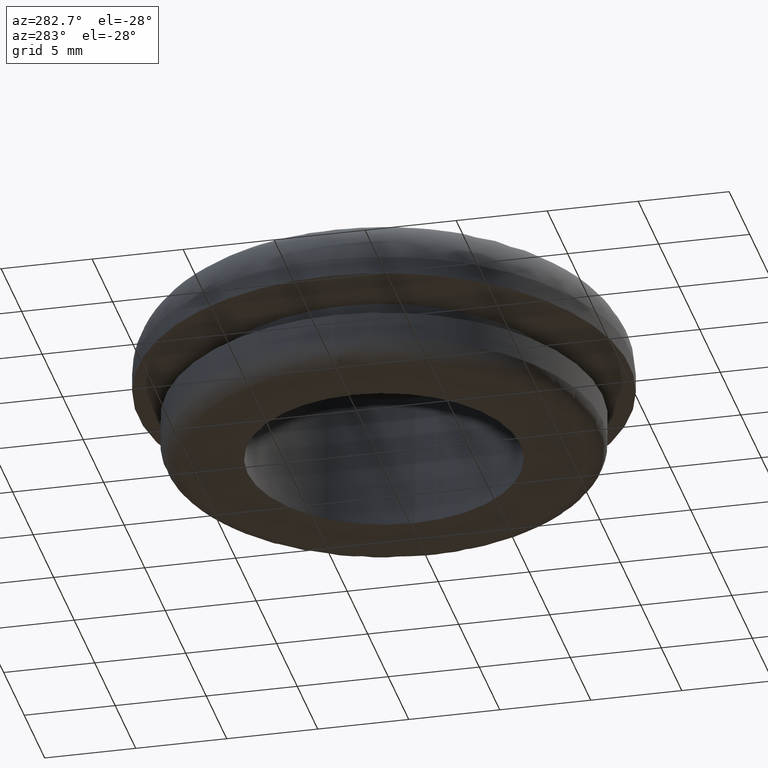
[diagram: clean part render]
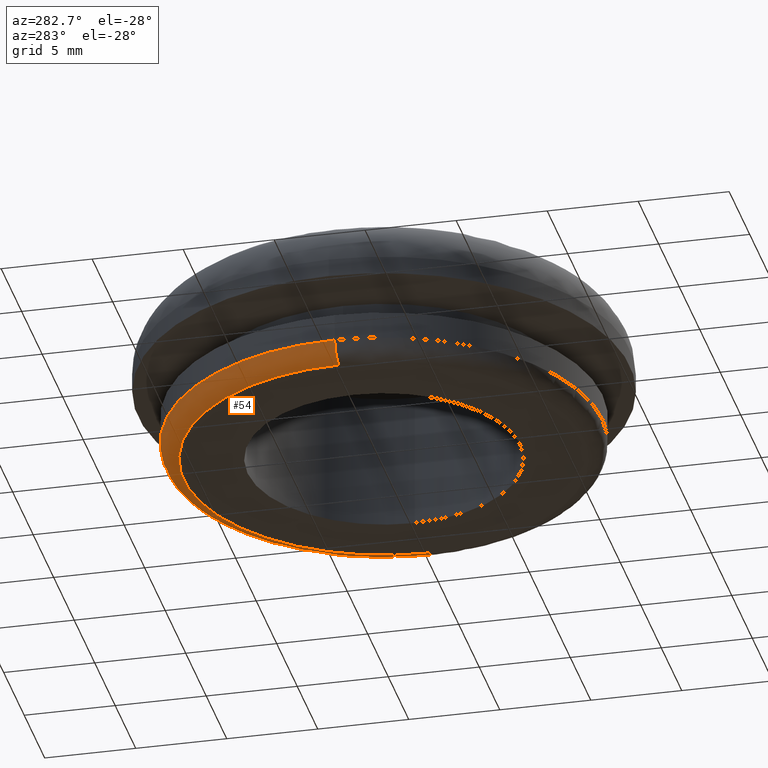
[diagram: same view with one face highlighted and labeled with its STEP entity id]
A machine part, auxiliary view. The second image highlights one B-rep face of the part: STEP entity #54.
In plain terms, the highlighted face is a freeform B-spline surface patch.
Its self-contained STEP definition (entity closure, byte-faithful):
#54=ADVANCED_FACE('',(#209),#208,.T.);
#208=( BOUNDED_SURFACE() B_SPLINE_SURFACE( 2,2,((#382,#383,#384,#385,#386),(#387,#388,#389,#390,#391),(#392,#393,#394,#395,#396),(#397,#398,#399,#400,#401),(#402,#403,#404,#405,#406)), .UNSPECIFIED.,.F.,.F.,.F.) B_SPLINE_SURFACE_WITH_KNOTS((3,2,3),(3,2,3),(0.00000000000E+000,5.00000000000E-001,1.00000000000E+000),(0.00000000000E+000,5.00000000000E-001,1.00000000000E+000), .UNSPECIFIED. ) GEOMETRIC_REPRESENTATION_ITEM() RATIONAL_B_SPLINE_SURFACE(((1.00000000000E+000,7.07106781187E-001,1.00000000000E+000,7.07106781187E-001,1.00000000000E+000),(7.07106781187E-001,5.00000000000E-001,7.07106781187E-001,5.00000000000E-001,7.07106781187E-001),(1.00000000000E+000,7.07106781187E-001,1.00000000000E+000,7.07106781187E-001,1.00000000000E+000),(7.07106781187E-001,5.00000000000E-001,7.07106781187E-001,5.00000000000E-001,7.07106781187E-001),(1.00000000000E+000,7.07106781187E-001,1.00000000000E+000,7.07106781187E-001,1.00000000000E+000))) REPRESENTATION_ITEM('') SURFACE() );
#209=FACE_OUTER_BOUND('',#407,.T.);
#382=CARTESIAN_POINT('',(2.64778069758E+002,-1.11755197137E-014,2.64637988893E+002));
#383=CARTESIAN_POINT('',(2.64778069758E+002,-2.32427104196E-014,2.63637988893E+002));
#384=CARTESIAN_POINT('',(2.65778069758E+002,-2.28739545181E-014,2.63637988893E+002));
#385=CARTESIAN_POINT('',(2.66778069758E+002,-2.25051986165E-014,2.63637988893E+002));
#386=CARTESIAN_POINT('',(2.66778069758E+002,-1.04380079106E-014,2.64637988893E+002));
#387=CARTESIAN_POINT('',(2.64778069758E+002,1.20000000000E+001,2.64637988893E+002));
#388=CARTESIAN_POINT('',(2.64778069758E+002,1.20000000000E+001,2.63637988893E+002));
#389=CARTESIAN_POINT('',(2.65778069758E+002,1.10000000000E+001,2.63637988893E+002));
#390=CARTESIAN_POINT('',(2.66778069758E+002,1.00000000000E+001,2.63637988893E+002));
#391=CARTESIAN_POINT('',(2.66778069758E+002,1.00000000000E+001,2.64637988893E+002));
#392=CARTESIAN_POINT('',(2.76778069758E+002,1.20000000000E+001,2.64637988893E+002));
#393=CARTESIAN_POINT('',(2.76778069758E+002,1.20000000000E+001,2.63637988893E+002));
#394=CARTESIAN_POINT('',(2.76778069758E+002,1.10000000000E+001,2.63637988893E+002));
#395=CARTESIAN_POINT('',(2.76778069758E+002,1.00000000000E+001,2.63637988893E+002));
#396=CARTESIAN_POINT('',(2.76778069758E+002,1.00000000000E+001,2.64637988893E+002));
#397=CARTESIAN_POINT('',(2.88778069758E+002,1.20000000000E+001,2.64637988893E+002));
#398=CARTESIAN_POINT('',(2.88778069758E+002,1.20000000000E+001,2.63637988893E+002));
#399=CARTESIAN_POINT('',(2.87778069758E+002,1.10000000000E+001,2.63637988893E+002));
#400=CARTESIAN_POINT('',(2.86778069758E+002,1.00000000000E+001,2.63637988893E+002));
#401=CARTESIAN_POINT('',(2.86778069758E+002,1.00000000000E+001,2.64637988893E+002));
#402=CARTESIAN_POINT('',(2.88778069758E+002,-8.55801917893E-016,2.64637988893E+002));
#403=CARTESIAN_POINT('',(2.88778069758E+002,-1.29229926238E-014,2.63637988893E+002));
#404=CARTESIAN_POINT('',(2.87778069758E+002,-1.34142132052E-014,2.63637988893E+002));
#405=CARTESIAN_POINT('',(2.86778069758E+002,-1.39054337867E-014,2.63637988893E+002));
#406=CARTESIAN_POINT('',(2.86778069758E+002,-1.83824308079E-015,2.64637988893E+002));
#407=EDGE_LOOP('',(#610,#611,#612,#613));
#610=ORIENTED_EDGE('',*,*,#667,.F.);
#611=ORIENTED_EDGE('',*,*,#684,.F.);
#612=ORIENTED_EDGE('',*,*,#680,.T.);
#613=ORIENTED_EDGE('',*,*,#685,.T.);
#667=EDGE_CURVE('',#809,#808,#816,.T.);
#680=EDGE_CURVE('',#900,#901,#902,.T.);
#684=EDGE_CURVE('',#900,#809,#926,.T.);
#685=EDGE_CURVE('',#901,#808,#932,.T.);
#808=VERTEX_POINT('',#1080);
#809=VERTEX_POINT('',#1081);
#816=CIRCLE('',#1089,1.10000000000E+001);
#900=VERTEX_POINT('',#1132);
#901=VERTEX_POINT('',#1133);
#902=CIRCLE('',#1137,1.20000000000E+001);
#926=(BOUNDED_CURVE() B_SPLINE_CURVE(2,(#1146,#1147,#1148),.UNSPECIFIED.,.F.,.F.) B_SPLINE_CURVE_WITH_KNOTS((3,3),(0.00000000000E+000,5.00000000000E-001),.UNSPECIFIED.) CURVE() GEOMETRIC_REPRESENTATION_ITEM() RATIONAL_B_SPLINE_CURVE((1.00000000000E+000,7.07106781187E-001,1.00000000000E+000)) REPRESENTATION_ITEM('') );
#932=(BOUNDED_CURVE() B_SPLINE_CURVE(3,(#1149,#1150,#1151,#1152,#1153),.UNSPECIFIED.,.F.,.F.) B_SPLINE_CURVE_WITH_KNOTS((4,1,4),(0.00000000000E+000,2.50000001886E-001,5.00000003275E-001),.UNSPECIFIED.) CURVE() GEOMETRIC_REPRESENTATION_ITEM() RATIONAL_B_SPLINE_CURVE((1.00000000000E+000,1.00000000000E+000,1.00000000000E+000,1.00000000000E+000,1.00000000000E+000)) REPRESENTATION_ITEM('') );
#1080=CARTESIAN_POINT('',(2.87778069758E+002,-2.30778395525E-014,2.63637988893E+002));
#1081=CARTESIAN_POINT('',(2.65778069758E+002,-2.30926389122E-014,2.63637988893E+002));
#1086=CARTESIAN_POINT('',(2.76778069758E+002,0.00000000000E+000,2.63637988893E+002));
#1087=DIRECTION('',(0.00000000000E+000,0.00000000000E+000,-1.00000000000E+000));
#1088=DIRECTION('',(1.00000000000E+000,-1.77635683940E-015,-0.00000000000E+000));
#1089=AXIS2_PLACEMENT_3D('',#1086,#1087,#1088);
#1132=CARTESIAN_POINT('',(2.64778069758E+002,2.57679439129E-014,2.64637988893E+002));
#1133=CARTESIAN_POINT('',(2.88778069758E+002,-2.30926389122E-014,2.64637988893E+002));
#1134=CARTESIAN_POINT('',(2.76778069758E+002,0.00000000000E+000,2.64637988893E+002));
#1135=DIRECTION('',(0.00000000000E+000,0.00000000000E+000,-1.00000000000E+000));
#1136=DIRECTION('',(-1.00000000000E+000,1.82570008494E-015,0.00000000000E+000));
#1137=AXIS2_PLACEMENT_3D('',#1134,#1135,#1136);
#1146=CARTESIAN_POINT('',(2.64778069758E+002,-1.11755197137E-014,2.64637988893E+002));
#1147=CARTESIAN_POINT('',(2.64778069758E+002,-2.32427104196E-014,2.63637988893E+002));
#1148=CARTESIAN_POINT('',(2.65778069758E+002,-2.28739545181E-014,2.63637988893E+002));
#1149=CARTESIAN_POINT('',(2.88778069758E+002,-3.55271367880E-015,2.64637988893E+002));
#1150=CARTESIAN_POINT('',(2.88780293817E+002,-6.32310650930E-015,2.64378538451E+002));
#1151=CARTESIAN_POINT('',(2.88561446068E+002,-1.20442865368E-014,2.63854612575E+002));
#1152=CARTESIAN_POINT('',(2.88037520190E+002,-1.46795028525E-014,2.63635764831E+002));
#1153=CARTESIAN_POINT('',(2.87778069749E+002,-1.48029736603E-014,2.63637988893E+002));